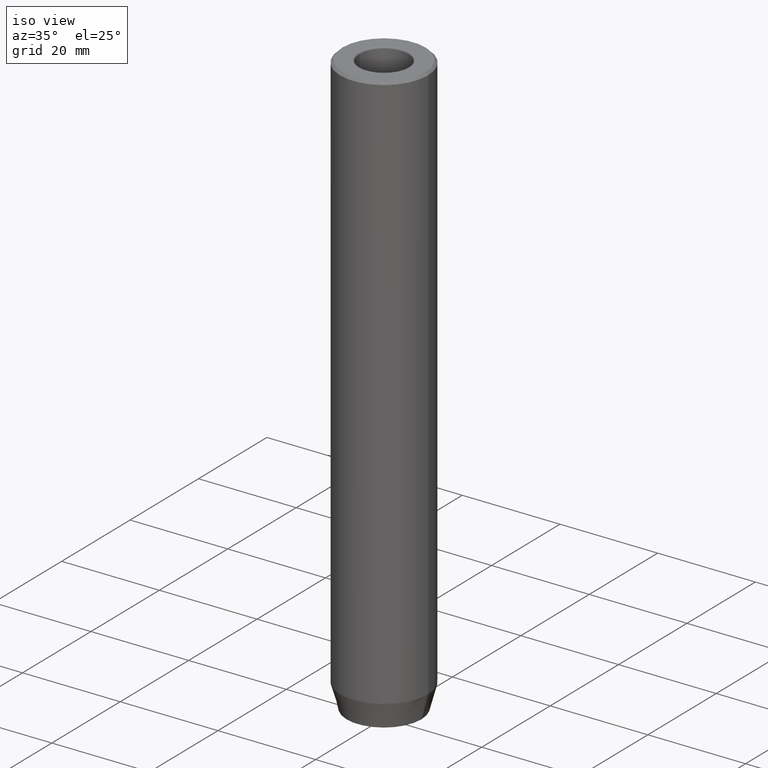
[diagram: clean part render]
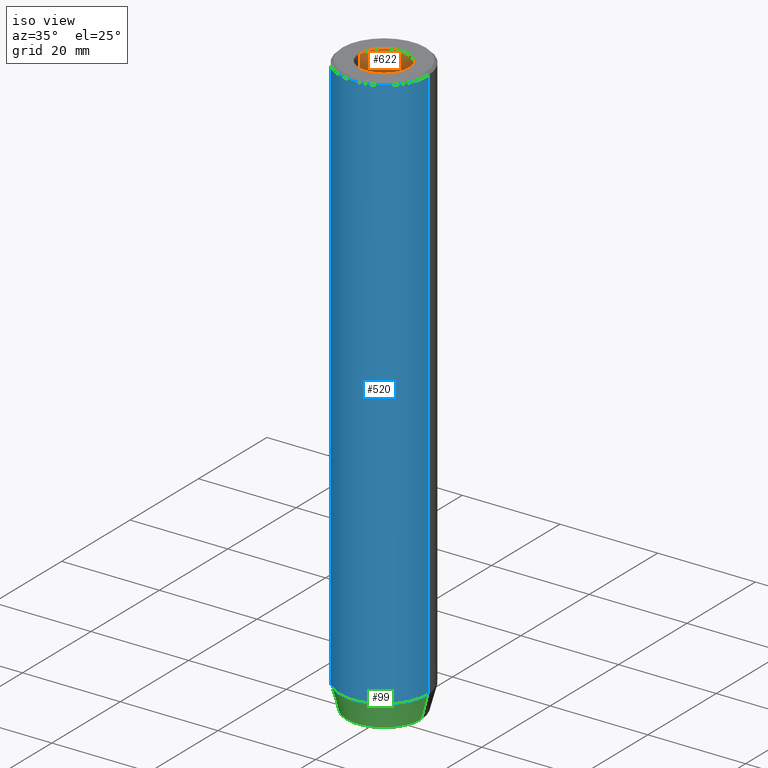
[diagram: same view with three faces highlighted in distinct colors, each labeled with its STEP entity id]
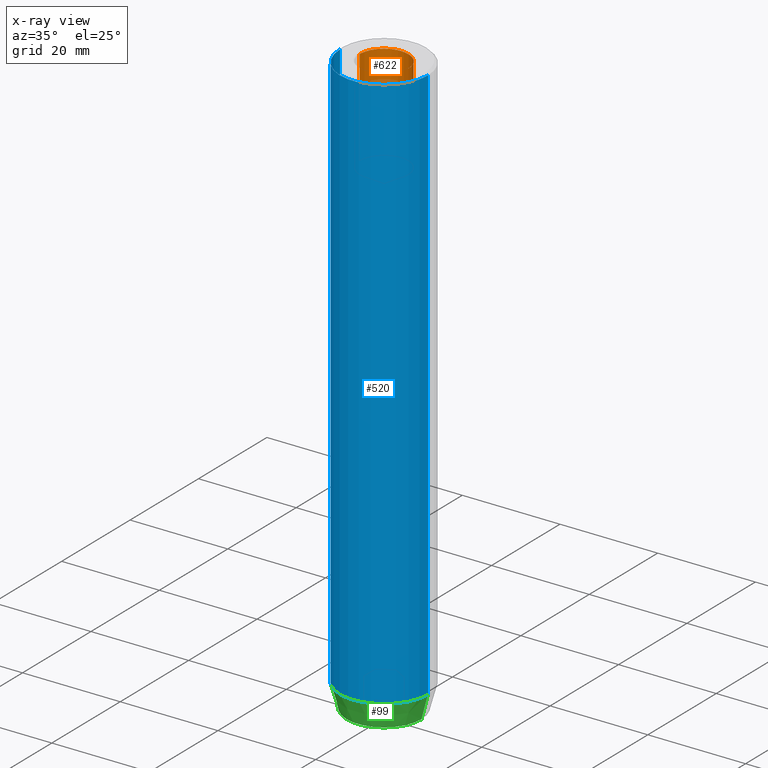
[diagram: x-ray of the same camera — body ghosted, the three highlighted faces saturated]
A machine part, iso view with three faces highlighted in distinct colors.
The next image is the same camera in x-ray (body ghosted, the three faces saturated) — at least one of them is partly hidden behind the body in this view.
Their STEP definitions:

[orange] entity #622 — the highlighted cylindrical surface (edge-blend (fillet) strip) has radius 5 mm, axis along (-0, -0, 1).
#2 = DIRECTION ( 'NONE',  ( -0.000000000000000000, -0.000000000000000000, 1.000000000000000000 ) ) ;
#6 = VECTOR ( 'NONE', #597, 1000.000000000000000 ) ;
#7 = CARTESIAN_POINT ( 'NONE',  ( 0.000000000000000000, 0.000000000000000000, -20.00000000000000000 ) ) ;
#73 = CIRCLE ( 'NONE', #381, 4.999999999999995559 ) ;
#100 = VERTEX_POINT ( 'NONE', #361 ) ;
#120 = EDGE_CURVE ( 'NONE', #220, #546, #612, .T. ) ;
#121 = CARTESIAN_POINT ( 'NONE',  ( 4.999999999999997335, 0.000000000000000000, 0.000000000000000000 ) ) ;
#168 = EDGE_CURVE ( 'NONE', #288, #220, #455, .T. ) ;
#172 = ORIENTED_EDGE ( 'NONE', *, *, #168, .T. ) ;
#193 = DIRECTION ( 'NONE',  ( 1.000000000000000000, 0.000000000000000000, 0.000000000000000000 ) ) ;
#217 = CYLINDRICAL_SURFACE ( 'NONE', #286, 4.999999999999997335 ) ;
#220 = VERTEX_POINT ( 'NONE', #568 ) ;
#257 = CARTESIAN_POINT ( 'NONE',  ( -4.999999999999997335, 6.123233995736763324E-16, -0.2999999999999999889 ) ) ;
#258 = DIRECTION ( 'NONE',  ( 1.000000000000000000, 0.000000000000000000, 0.000000000000000000 ) ) ;
#265 = LINE ( 'NONE', #407, #6 ) ;
#272 = AXIS2_PLACEMENT_3D ( 'NONE', #551, #420, #258 ) ;
#280 = ORIENTED_EDGE ( 'NONE', *, *, #567, .F. ) ;
#286 = AXIS2_PLACEMENT_3D ( 'NONE', #566, #521, #334 ) ;
#288 = VERTEX_POINT ( 'NONE', #435 ) ;
#334 = DIRECTION ( 'NONE',  ( 1.000000000000000000, 0.000000000000000000, 0.000000000000000000 ) ) ;
#361 = CARTESIAN_POINT ( 'NONE',  ( -4.999999999999995559, 6.123233995736761352E-16, -20.00000000000000000 ) ) ;
#381 = AXIS2_PLACEMENT_3D ( 'NONE', #7, #2, #193 ) ;
#407 = CARTESIAN_POINT ( 'NONE',  ( -4.999999999999997335, 6.123233995736763324E-16, 0.000000000000000000 ) ) ;
#409 = EDGE_CURVE ( 'NONE', #288, #100, #73, .T. ) ;
#420 = DIRECTION ( 'NONE',  ( -0.000000000000000000, -0.000000000000000000, 1.000000000000000000 ) ) ;
#432 = FACE_OUTER_BOUND ( 'NONE', #602, .T. ) ;
#435 = CARTESIAN_POINT ( 'NONE',  ( 4.999999999999995559, 0.000000000000000000, -20.00000000000000000 ) ) ;
#455 = LINE ( 'NONE', #121, #495 ) ;
#467 = ORIENTED_EDGE ( 'NONE', *, *, #120, .T. ) ;
#495 = VECTOR ( 'NONE', #518, 1000.000000000000000 ) ;
#499 = ORIENTED_EDGE ( 'NONE', *, *, #409, .F. ) ;
#518 = DIRECTION ( 'NONE',  ( -0.000000000000000000, -0.000000000000000000, 1.000000000000000000 ) ) ;
#521 = DIRECTION ( 'NONE',  ( -0.000000000000000000, -0.000000000000000000, 1.000000000000000000 ) ) ;
#546 = VERTEX_POINT ( 'NONE', #257 ) ;
#551 = CARTESIAN_POINT ( 'NONE',  ( 0.000000000000000000, 0.000000000000000000, -0.2999999999999999889 ) ) ;
#566 = CARTESIAN_POINT ( 'NONE',  ( 0.000000000000000000, 0.000000000000000000, 0.000000000000000000 ) ) ;
#567 = EDGE_CURVE ( 'NONE', #100, #546, #265, .T. ) ;
#568 = CARTESIAN_POINT ( 'NONE',  ( 4.999999999999997335, 0.000000000000000000, -0.2999999999999999889 ) ) ;
#597 = DIRECTION ( 'NONE',  ( -0.000000000000000000, -0.000000000000000000, 1.000000000000000000 ) ) ;
#602 = EDGE_LOOP ( 'NONE', ( #280, #499, #172, #467 ) ) ;
#612 = CIRCLE ( 'NONE', #272, 4.999999999999997335 ) ;
#622 = ADVANCED_FACE ( 'NONE', ( #432 ), #217, .F. ) ;

[blue] entity #520 — the highlighted cylindrical surface (partial cylindrical patch) has radius 9 mm, axis along (-0, -0, 1).
#67 = DIRECTION ( 'NONE',  ( -0.000000000000000000, -0.000000000000000000, 1.000000000000000000 ) ) ;
#102 = VERTEX_POINT ( 'NONE', #158 ) ;
#105 = CIRCLE ( 'NONE', #460, 9.000000000000000000 ) ;
#119 = ORIENTED_EDGE ( 'NONE', *, *, #494, .T. ) ;
#123 = VECTOR ( 'NONE', #427, 1000.000000000000000 ) ;
#150 = CARTESIAN_POINT ( 'NONE',  ( 0.000000000000000000, 0.000000000000000000, 0.000000000000000000 ) ) ;
#154 = CARTESIAN_POINT ( 'NONE',  ( 0.000000000000000000, 0.000000000000000000, -114.9999999999999858 ) ) ;
#158 = CARTESIAN_POINT ( 'NONE',  ( 9.000000000000000000, 0.000000000000000000, -114.9999999999999858 ) ) ;
#169 = DIRECTION ( 'NONE',  ( 0.000000000000000000, 0.000000000000000000, -1.000000000000000000 ) ) ;
#208 = EDGE_CURVE ( 'NONE', #102, #333, #329, .T. ) ;
#230 = EDGE_CURVE ( 'NONE', #333, #558, #261, .T. ) ;
#233 = VECTOR ( 'NONE', #430, 1000.000000000000000 ) ;
#236 = EDGE_CURVE ( 'NONE', #630, #558, #325, .T. ) ;
#261 = CIRCLE ( 'NONE', #382, 9.000000000000000000 ) ;
#263 = DIRECTION ( 'NONE',  ( 1.000000000000000000, 0.000000000000000000, 0.000000000000000000 ) ) ;
#282 = CARTESIAN_POINT ( 'NONE',  ( 9.000000000000000000, 0.000000000000000000, 0.000000000000000000 ) ) ;
#287 = CARTESIAN_POINT ( 'NONE',  ( 0.000000000000000000, 0.000000000000000000, -0.4999999999999952260 ) ) ;
#317 = AXIS2_PLACEMENT_3D ( 'NONE', #150, #67, #367 ) ;
#325 = LINE ( 'NONE', #522, #123 ) ;
#329 = LINE ( 'NONE', #282, #233 ) ;
#333 = VERTEX_POINT ( 'NONE', #500 ) ;
#364 = ORIENTED_EDGE ( 'NONE', *, *, #230, .T. ) ;
#367 = DIRECTION ( 'NONE',  ( 1.000000000000000000, 0.000000000000000000, 0.000000000000000000 ) ) ;
#382 = AXIS2_PLACEMENT_3D ( 'NONE', #287, #169, #526 ) ;
#397 = ORIENTED_EDGE ( 'NONE', *, *, #236, .F. ) ;
#427 = DIRECTION ( 'NONE',  ( -0.000000000000000000, -0.000000000000000000, 1.000000000000000000 ) ) ;
#430 = DIRECTION ( 'NONE',  ( -0.000000000000000000, -0.000000000000000000, 1.000000000000000000 ) ) ;
#457 = FACE_OUTER_BOUND ( 'NONE', #477, .T. ) ;
#460 = AXIS2_PLACEMENT_3D ( 'NONE', #154, #516, #263 ) ;
#473 = ORIENTED_EDGE ( 'NONE', *, *, #208, .T. ) ;
#477 = EDGE_LOOP ( 'NONE', ( #397, #119, #473, #364 ) ) ;
#494 = EDGE_CURVE ( 'NONE', #630, #102, #105, .T. ) ;
#500 = CARTESIAN_POINT ( 'NONE',  ( 9.000000000000000000, 0.000000000000000000, -0.4999999999999952260 ) ) ;
#505 = CYLINDRICAL_SURFACE ( 'NONE', #317, 9.000000000000000000 ) ;
#516 = DIRECTION ( 'NONE',  ( -0.000000000000000000, -0.000000000000000000, 1.000000000000000000 ) ) ;
#520 = ADVANCED_FACE ( 'NONE', ( #457 ), #505, .T. ) ;
#522 = CARTESIAN_POINT ( 'NONE',  ( -9.000000000000000000, 1.102182119232617714E-15, 0.000000000000000000 ) ) ;
#526 = DIRECTION ( 'NONE',  ( 1.000000000000000000, 0.000000000000000000, 0.000000000000000000 ) ) ;
#558 = VERTEX_POINT ( 'NONE', #598 ) ;
#598 = CARTESIAN_POINT ( 'NONE',  ( -9.000000000000000000, 1.102182119232617714E-15, -0.4999999999999952260 ) ) ;
#625 = CARTESIAN_POINT ( 'NONE',  ( -9.000000000000000000, 1.102182119232617714E-15, -114.9999999999999858 ) ) ;
#630 = VERTEX_POINT ( 'NONE', #625 ) ;

[green] entity #99 — the highlighted conical surface has half-angle 15 deg.
#10 = CARTESIAN_POINT ( 'NONE',  ( 9.000000000000000000, 0.000000000000000000, -114.9999999999999858 ) ) ;
#12 = CARTESIAN_POINT ( 'NONE',  ( -9.000000000000000000, 1.102182119232617714E-15, -114.9999999999999858 ) ) ;
#16 = CIRCLE ( 'NONE', #523, 7.660254037844380193 ) ;
#34 = ORIENTED_EDGE ( 'NONE', *, *, #494, .F. ) ;
#60 = LINE ( 'NONE', #12, #406 ) ;
#68 = CARTESIAN_POINT ( 'NONE',  ( 0.000000000000000000, 0.000000000000000000, -114.9999999999999858 ) ) ;
#70 = ORIENTED_EDGE ( 'NONE', *, *, #576, .F. ) ;
#93 = VERTEX_POINT ( 'NONE', #605 ) ;
#99 = ADVANCED_FACE ( 'NONE', ( #517 ), #532, .T. ) ;
#102 = VERTEX_POINT ( 'NONE', #158 ) ;
#105 = CIRCLE ( 'NONE', #460, 9.000000000000000000 ) ;
#106 = DIRECTION ( 'NONE',  ( -0.2588190451025214611, 3.169619151431774186E-17, 0.9659258262890679791 ) ) ;
#140 = DIRECTION ( 'NONE',  ( -0.000000000000000000, -0.000000000000000000, 1.000000000000000000 ) ) ;
#154 = CARTESIAN_POINT ( 'NONE',  ( 0.000000000000000000, 0.000000000000000000, -114.9999999999999858 ) ) ;
#158 = CARTESIAN_POINT ( 'NONE',  ( 9.000000000000000000, 0.000000000000000000, -114.9999999999999858 ) ) ;
#188 = EDGE_LOOP ( 'NONE', ( #70, #209, #396, #34 ) ) ;
#199 = DIRECTION ( 'NONE',  ( -0.000000000000000000, -0.000000000000000000, 1.000000000000000000 ) ) ;
#209 = ORIENTED_EDGE ( 'NONE', *, *, #400, .T. ) ;
#213 = VERTEX_POINT ( 'NONE', #424 ) ;
#263 = DIRECTION ( 'NONE',  ( 1.000000000000000000, 0.000000000000000000, 0.000000000000000000 ) ) ;
#349 = DIRECTION ( 'NONE',  ( 1.000000000000000000, 0.000000000000000000, 0.000000000000000000 ) ) ;
#396 = ORIENTED_EDGE ( 'NONE', *, *, #468, .T. ) ;
#399 = CARTESIAN_POINT ( 'NONE',  ( 0.000000000000000000, 0.000000000000000000, -120.0000000000000000 ) ) ;
#400 = EDGE_CURVE ( 'NONE', #93, #213, #16, .T. ) ;
#406 = VECTOR ( 'NONE', #106, 1000.000000000000114 ) ;
#412 = DIRECTION ( 'NONE',  ( 1.000000000000000000, 0.000000000000000000, 0.000000000000000000 ) ) ;
#417 = LINE ( 'NONE', #10, #623 ) ;
#424 = CARTESIAN_POINT ( 'NONE',  ( 7.660254037844380193, 0.000000000000000000, -120.0000000000000000 ) ) ;
#460 = AXIS2_PLACEMENT_3D ( 'NONE', #154, #516, #263 ) ;
#465 = DIRECTION ( 'NONE',  ( 0.2588190451025214611, 0.000000000000000000, 0.9659258262890679791 ) ) ;
#468 = EDGE_CURVE ( 'NONE', #213, #102, #417, .T. ) ;
#494 = EDGE_CURVE ( 'NONE', #630, #102, #105, .T. ) ;
#516 = DIRECTION ( 'NONE',  ( -0.000000000000000000, -0.000000000000000000, 1.000000000000000000 ) ) ;
#517 = FACE_OUTER_BOUND ( 'NONE', #188, .T. ) ;
#523 = AXIS2_PLACEMENT_3D ( 'NONE', #399, #140, #349 ) ;
#532 = CONICAL_SURFACE ( 'NONE', #633, 9.000000000000000000, 0.2617993877991502405 ) ;
#576 = EDGE_CURVE ( 'NONE', #93, #630, #60, .T. ) ;
#605 = CARTESIAN_POINT ( 'NONE',  ( -7.660254037844380193, 1.020146339021394272E-15, -120.0000000000000000 ) ) ;
#623 = VECTOR ( 'NONE', #465, 1000.000000000000114 ) ;
#625 = CARTESIAN_POINT ( 'NONE',  ( -9.000000000000000000, 1.102182119232617714E-15, -114.9999999999999858 ) ) ;
#630 = VERTEX_POINT ( 'NONE', #625 ) ;
#633 = AXIS2_PLACEMENT_3D ( 'NONE', #68, #199, #412 ) ;